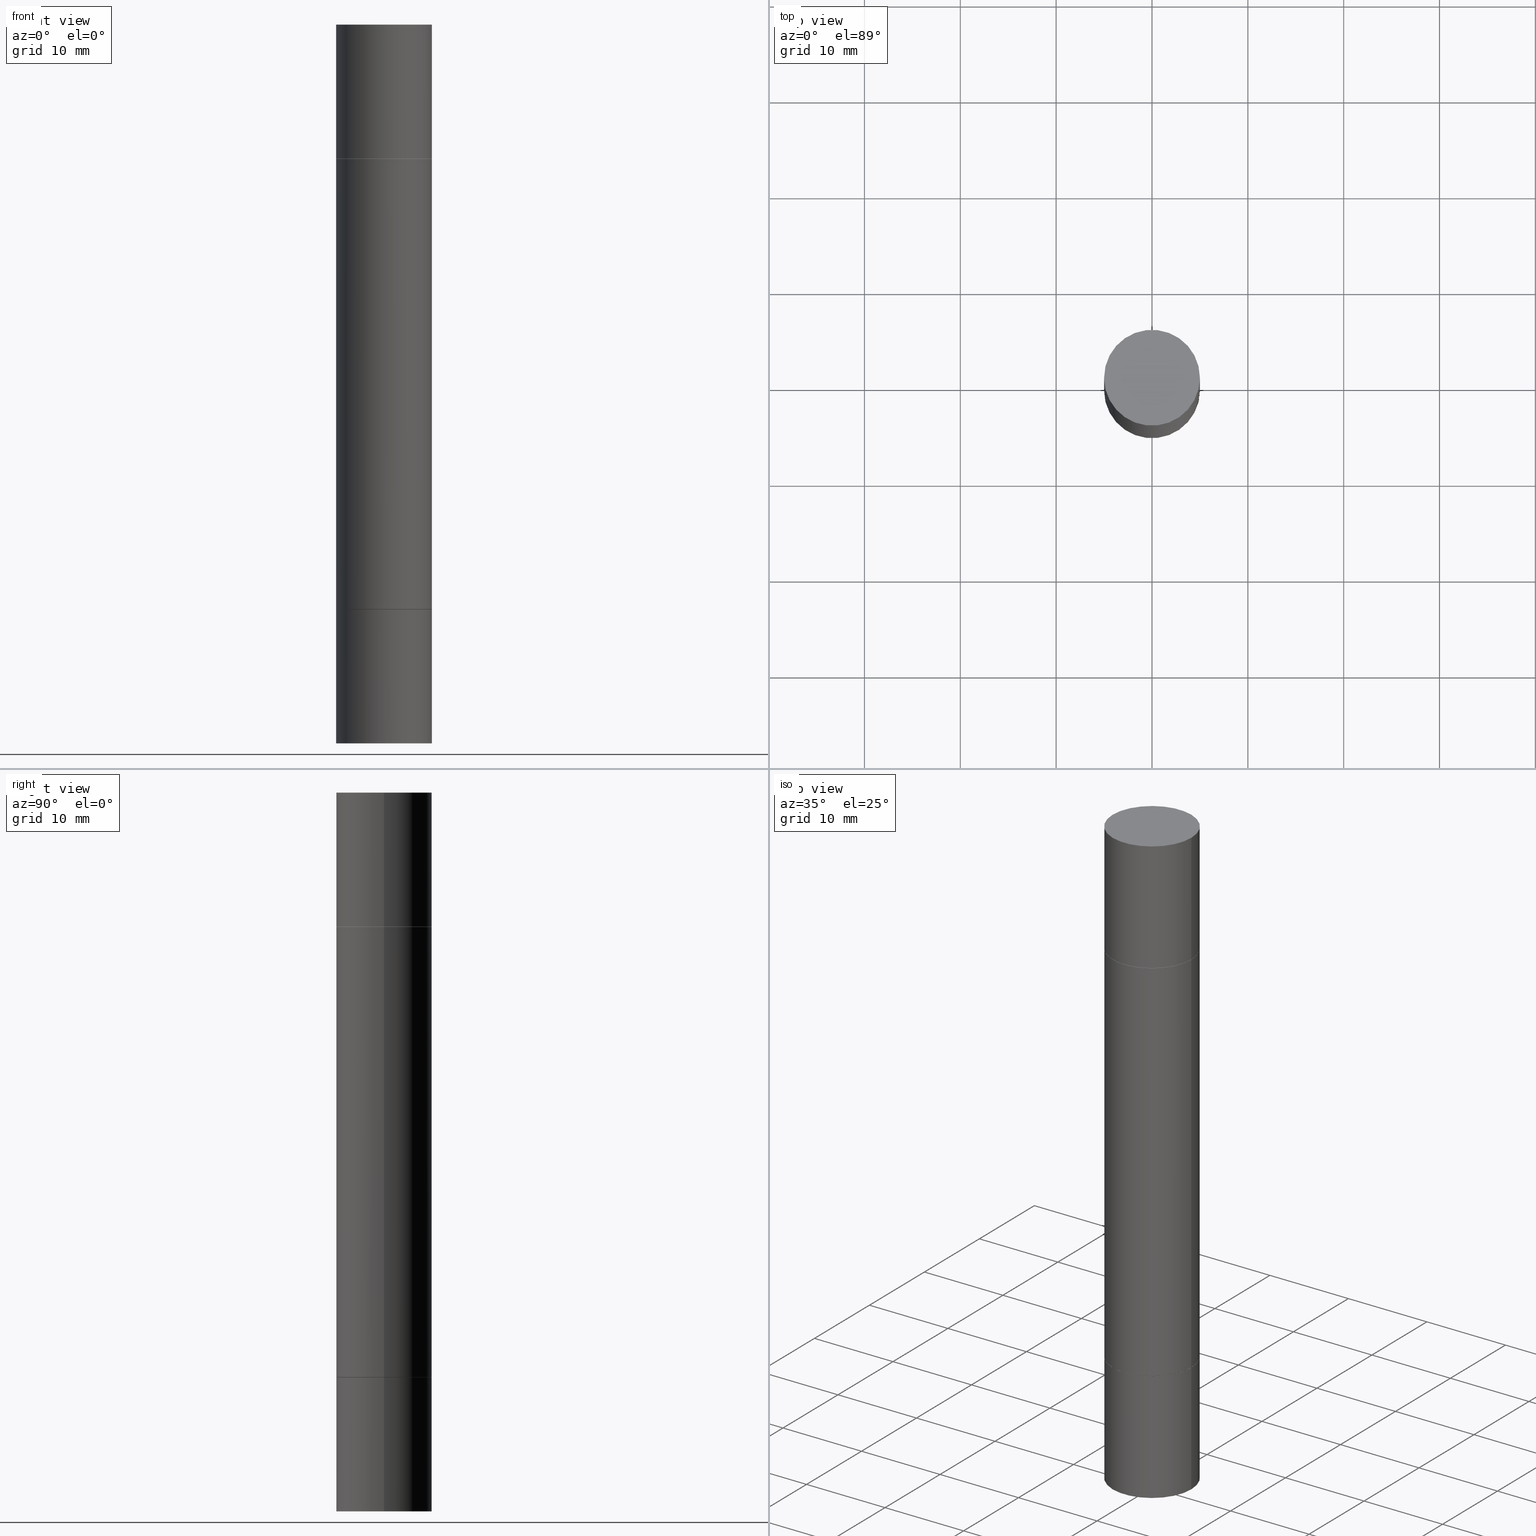
[diagram: canonical four-view strip — front | top / right | iso, engineering-drawing reading convention]
A machine part, canonical four-view strip (front | top / right | iso — engineering-drawing reading convention). The complete STEP part file that produces these views, byte-faithful:
ISO-10303-21;
HEADER;
FILE_DESCRIPTION (( 'STEP AP203' ),
    '1' );
FILE_NAME ('41457.STEP',
    '2024-03-04T15:45:16',
    ( '' ),
    ( '' ),
    'SwSTEP 2.0',
    'SolidWorks 2023',
    '' );
FILE_SCHEMA (( 'CONFIG_CONTROL_DESIGN' ));
ENDSEC;

DATA;
#1 = AXIS2_PLACEMENT_3D ( 'NONE', #388, #78, #191 ) ;
#2 = CLOSED_SHELL ( 'NONE', ( #397, #20, #266, #49 ) ) ;
#3 = FACE_OUTER_BOUND ( 'NONE', #462, .T. ) ;
#4 = EDGE_CURVE ( 'NONE', #501, #244, #326, .T. ) ;
#5 = CARTESIAN_POINT ( 'NONE',  ( -0.1968500000000000250, -8.961237421421697861E-15, -2.952799999999998981 ) ) ;
#6 = FACE_OUTER_BOUND ( 'NONE', #156, .T. ) ;
#7 = ORIENTED_EDGE ( 'NONE', *, *, #375, .T. ) ;
#8 = ORIENTED_EDGE ( 'NONE', *, *, #598, .T. ) ;
#9 = DIRECTION ( 'NONE',  ( 0.7071067811864267805, -7.407546758113824138E-15, -0.7071067811866682540 ) ) ;
#10 = DIRECTION ( 'NONE',  ( 1.000000000000000000, -6.982962677686267499E-15, 0.000000000000000000 ) ) ;
#11 = AXIS2_PLACEMENT_3D ( 'NONE', #495, #131, #340 ) ;
#12 = EDGE_CURVE ( 'NONE', #80, #133, #343, .T. ) ;
#13 = CARTESIAN_POINT ( 'NONE',  ( -0.1968500000000000250, -7.948690465007109319E-15, -2.952799999999999869 ) ) ;
#14 = DIRECTION ( 'NONE',  ( 2.445468806185136597E-29, 3.492890411551752677E-15, 1.000000000000000000 ) ) ;
#15 = EDGE_LOOP ( 'NONE', ( #395, #423 ) ) ;
#16 = CYLINDRICAL_SURFACE ( 'NONE', #302, 0.1968500000000000250 ) ;
#17 = EDGE_CURVE ( 'NONE', #582, #111, #510, .T. ) ;
#18 = EDGE_LOOP ( 'NONE', ( #534, #546 ) ) ;
#19 = DIRECTION ( 'NONE',  ( 0.000000000000000000, 1.000000000000000000, -4.163344669033678790E-15 ) ) ;
#20 = ADVANCED_FACE ( 'NONE', ( #439 ), #494, .T. ) ;
#21 = VERTEX_POINT ( 'NONE', #608 ) ;
#22 = AXIS2_PLACEMENT_3D ( 'NONE', #323, #536, #217 ) ;
#23 = AXIS2_PLACEMENT_3D ( 'NONE', #508, #449, #285 ) ;
#24 = PRODUCT_DEFINITION_SHAPE ( 'NONE', 'NONE',  #104 ) ;
#25 = DIRECTION ( 'NONE',  ( -2.445468806185136877E-29, -3.492890411551753071E-15, -1.000000000000000000 ) ) ;
#26 = CARTESIAN_POINT ( 'NONE',  ( 5.873037884934223228E-29, -1.923200839900336120E-15, -0.5511999999999995792 ) ) ;
#27 = ORIENTED_EDGE ( 'NONE', *, *, #436, .F. ) ;
#28 = DIRECTION ( 'NONE',  ( -2.445468806185136597E-29, 3.491481338843145583E-15, 1.000000000000000000 ) ) ;
#29 = DIRECTION ( 'NONE',  ( 1.000000000000000000, -6.982962677686267499E-15, 0.000000000000000000 ) ) ;
#30 = DIRECTION ( 'NONE',  ( -2.445468806185136597E-29, 3.491481338843145583E-15, 1.000000000000000000 ) ) ;
#31 = CARTESIAN_POINT ( 'NONE',  ( -0.1968500000000000250, -7.948690465007109319E-15, -2.401599999999999735 ) ) ;
#32 = DIRECTION ( 'NONE',  ( 1.000000000000000000, -6.982962677686268288E-15, 0.000000000000000000 ) ) ;
#33 = ORIENTED_EDGE ( 'NONE', *, *, #639, .F. ) ;
#34 = CONICAL_SURFACE ( 'NONE', #421, 0.1958499999999999963, 0.7853981633972775267 ) ;
#35 = CIRCLE ( 'NONE', #422, 0.1968500000000000250 ) ;
#36 = CARTESIAN_POINT ( 'NONE',  ( 5.873037884934223228E-29, -1.923200839900334937E-15, -0.5511999999999992461 ) ) ;
#37 = CARTESIAN_POINT ( 'NONE',  ( 0.1958499999999999963, -9.752754823790552857E-15, -2.401599999999999735 ) ) ;
#38 = MANIFOLD_SOLID_BREP ( 'Mirror1[4]', #301 ) ;
#39 = MANIFOLD_SOLID_BREP ( 'Body-Move/Copy2[1]', #2 ) ;
#40 = MANIFOLD_SOLID_BREP ( 'Mirror1[1]', #47 ) ;
#41 = ORIENTED_EDGE ( 'NONE', *, *, #17, .F. ) ;
#42 = APPROVAL_DATE_TIME ( #516, #586 ) ;
#43 = ORIENTED_EDGE ( 'NONE', *, *, #60, .F. ) ;
#44 = APPROVAL_ROLE ( '' ) ;
#45 = AXIS2_PLACEMENT_3D ( 'NONE', #530, #470, #420 ) ;
#46 = FACE_OUTER_BOUND ( 'NONE', #626, .T. ) ;
#47 = CLOSED_SHELL ( 'NONE', ( #371, #659, #578, #64, #211, #50 ) ) ;
#48 = ORIENTED_EDGE ( 'NONE', *, *, #497, .T. ) ;
#49 = ADVANCED_FACE ( 'NONE', ( #498 ), #653, .T. ) ;
#50 = ADVANCED_FACE ( 'NONE', ( #339 ), #553, .T. ) ;
#51 = DATE_AND_TIME ( #154, #614 ) ;
#52 = LINE ( 'NONE', #100, #377 ) ;
#53 = VERTEX_POINT ( 'NONE', #186 ) ;
#54 = ORIENTED_EDGE ( 'NONE', *, *, #593, .F. ) ;
#55 = APPLICATION_PROTOCOL_DEFINITION ( 'international standard', 'config_control_design', 1994, #441 ) ;
#56 = FACE_OUTER_BOUND ( 'NONE', #475, .T. ) ;
#57 = CC_DESIGN_PERSON_AND_ORGANIZATION_ASSIGNMENT ( #627, #202, ( #673 ) ) ;
#58 = DIRECTION ( 'NONE',  ( 1.000000000000000000, -6.982962677686262766E-15, 0.000000000000000000 ) ) ;
#59 = CONICAL_SURFACE ( 'NONE', #443, 0.1958499999999999963, 0.7853981633972775267 ) ;
#60 = EDGE_CURVE ( 'NONE', #226, #310, #210, .T. ) ;
#61 = CARTESIAN_POINT ( 'NONE',  ( -0.1968500000000000250, 3.899287883846529545E-16, 5.463695987328561936E-16 ) ) ;
#62 = LINE ( 'NONE', #68, #612 ) ;
#63 = DIRECTION ( 'NONE',  ( -2.445468806185136597E-29, 3.491481338843145583E-15, 1.000000000000000000 ) ) ;
#64 = ADVANCED_FACE ( 'NONE', ( #491 ), #679, .F. ) ;
#65 = FACE_OUTER_BOUND ( 'NONE', #356, .T. ) ;
#66 = AXIS2_PLACEMENT_3D ( 'NONE', #472, #251, #524 ) ;
#67 = DIRECTION ( 'NONE',  ( 2.445468806185136597E-29, 3.492890411551752677E-15, 1.000000000000000000 ) ) ;
#68 = CARTESIAN_POINT ( 'NONE',  ( 0.1958499999999999963, -3.290814080325190531E-15, -0.5511999999999992461 ) ) ;
#69 = CARTESIAN_POINT ( 'NONE',  ( 5.873037884934223228E-29, -8.385141583365697263E-15, -2.401599999999999735 ) ) ;
#70 = ORIENTED_EDGE ( 'NONE', *, *, #375, .F. ) ;
#71 = CARTESIAN_POINT ( 'NONE',  ( 5.870592416128037625E-29, -8.381650102026854256E-15, -2.400599999999999401 ) ) ;
#72 = DIRECTION ( 'NONE',  ( 2.445468806185136597E-29, 3.492890411551752677E-15, 1.000000000000000000 ) ) ;
#73 = DIRECTION ( 'NONE',  ( -2.445468806185136597E-29, -3.492890411551752677E-15, -1.000000000000000000 ) ) ;
#74 = ADVANCED_FACE ( 'NONE', ( #520 ), #157, .F. ) ;
#75 = CARTESIAN_POINT ( 'NONE',  ( 0.000000000000000000, -1.031172645228302408E-14, -2.952799999999998981 ) ) ;
#76 = CIRCLE ( 'NONE', #354, 0.1968500000000000250 ) ;
#77 = AXIS2_PLACEMENT_3D ( 'NONE', #428, #437, #478 ) ;
#78 = DIRECTION ( 'NONE',  ( -2.445468806185136597E-29, 3.491481338843145583E-15, 1.000000000000000000 ) ) ;
#79 = DIRECTION ( 'NONE',  ( 1.000000000000000000, -6.982962677686265922E-15, 4.876176775795935793E-29 ) ) ;
#80 = VERTEX_POINT ( 'NONE', #102 ) ;
#81 = LINE ( 'NONE', #613, #642 ) ;
#82 = DIRECTION ( 'NONE',  ( 1.000000000000000000, -6.982962677686268288E-15, 0.000000000000000000 ) ) ;
#83 = LINE ( 'NONE', #313, #542 ) ;
#84 = ORIENTED_EDGE ( 'NONE', *, *, #197, .F. ) ;
#85 = EDGE_CURVE ( 'NONE', #111, #549, #83, .T. ) ;
#86 = FACE_OUTER_BOUND ( 'NONE', #212, .T. ) ;
#87 = ORIENTED_EDGE ( 'NONE', *, *, #509, .F. ) ;
#88 = AXIS2_PLACEMENT_3D ( 'NONE', #69, #638, #384 ) ;
#89 = CALENDAR_DATE ( 2024, 4, 3 ) ;
#90 = LINE ( 'NONE', #138, #378 ) ;
#91 = EDGE_CURVE ( 'NONE', #258, #335, #52, .T. ) ;
#92 = ORIENTED_EDGE ( 'NONE', *, *, #273, .T. ) ;
#93 = ORIENTED_EDGE ( 'NONE', *, *, #583, .T. ) ;
#94 = PERSON_AND_ORGANIZATION ( #147, #521 ) ;
#95 = CARTESIAN_POINT ( 'NONE',  ( -0.1968499999999998307, -8.961237421421701017E-15, -2.952799999999998981 ) ) ;
#96 = EDGE_CURVE ( 'NONE', #582, #621, #628, .T. ) ;
#97 = ORIENTED_EDGE ( 'NONE', *, *, #139, .T. ) ;
#98 = AXIS2_PLACEMENT_3D ( 'NONE', #130, #30, #237 ) ;
#99 = LOCAL_TIME ( 10, 45, 16.00000000000000000, #419 ) ;
#100 = CARTESIAN_POINT ( 'NONE',  ( 0.1968499999999998307, -1.168632265538556411E-14, -2.952799999999998981 ) ) ;
#101 = ORIENTED_EDGE ( 'NONE', *, *, #345, .F. ) ;
#102 = CARTESIAN_POINT ( 'NONE',  ( -0.1968500000000000250, 3.899287883846532010E-16, -0.5511999999999995792 ) ) ;
#103 = DESIGN_CONTEXT ( 'detailed design', #441, 'design' ) ;
#104 = PRODUCT_DEFINITION ( 'UNKNOWN', '', #673, #103 ) ;
#105 = DIRECTION ( 'NONE',  ( 1.000000000000000000, -6.982962677686265922E-15, 9.839502134516470631E-33 ) ) ;
#106 = DIRECTION ( 'NONE',  ( -1.000000000000000000, 6.982962677686265922E-15, -4.876176775795935793E-29 ) ) ;
#107 = AXIS2_PLACEMENT_3D ( 'NONE', #660, #442, #611 ) ;
#108 = APPROVAL_PERSON_ORGANIZATION ( #192, #586, #44 ) ;
#109 = ORIENTED_EDGE ( 'NONE', *, *, #383, .F. ) ;
#110 = DIRECTION ( 'NONE',  ( -1.000000000000000000, 6.982962677686265922E-15, -9.839502134516470631E-33 ) ) ;
#111 = VERTEX_POINT ( 'NONE', #261 ) ;
#112 = PLANE ( 'NONE',  #318 ) ;
#113 = ADVANCED_BREP_SHAPE_REPRESENTATION ( '41457', ( #39, #40, #268, #38, #493, #66 ), #577 ) ;
#114 = DIRECTION ( 'NONE',  ( 1.000000000000000000, -6.982962677686265922E-15, 0.000000000000000000 ) ) ;
#115 = EDGE_CURVE ( 'NONE', #677, #430, #120, .T. ) ;
#116 = VERTEX_POINT ( 'NONE', #206 ) ;
#117 = ADVANCED_FACE ( 'NONE', ( #413 ), #209, .T. ) ;
#118 = DIRECTION ( 'NONE',  ( 0.000000000000000000, 1.000000000000000000, -4.163344669033678790E-15 ) ) ;
#119 = DIRECTION ( 'NONE',  ( 1.000000000000000000, -6.982962677686262766E-15, 0.000000000000000000 ) ) ;
#120 = CIRCLE ( 'NONE', #624, 0.1958499999999999963 ) ;
#121 = AXIS2_PLACEMENT_3D ( 'NONE', #291, #227, #336 ) ;
#122 = DIRECTION ( 'NONE',  ( -2.445468806185136877E-29, -3.492890411551753071E-15, -1.000000000000000000 ) ) ;
#123 = CLOSED_SHELL ( 'NONE', ( #332, #166, #416, #74, #216, #432, #241, #141 ) ) ;
#124 = DIRECTION ( 'NONE',  ( -2.445468806185136597E-29, -3.492890411551752677E-15, -1.000000000000000000 ) ) ;
#125 = DIRECTION ( 'NONE',  ( -2.445468806185136597E-29, -3.492890411551752677E-15, -1.000000000000000000 ) ) ;
#126 = ORIENTED_EDGE ( 'NONE', *, *, #639, .T. ) ;
#127 = DIRECTION ( 'NONE',  ( 1.000000000000000000, -6.982962677686262766E-15, 0.000000000000000000 ) ) ;
#128 = EDGE_CURVE ( 'NONE', #53, #501, #140, .T. ) ;
#129 = PRODUCT ( '41457', '41457', '', ( #359 ) ) ;
#130 = CARTESIAN_POINT ( 'NONE',  ( 0.000000000000000000, 0.000000000000000000, 0.000000000000000000 ) ) ;
#131 = DIRECTION ( 'NONE',  ( 2.445468806185136597E-29, 3.492890411551752677E-15, 1.000000000000000000 ) ) ;
#132 = CARTESIAN_POINT ( 'NONE',  ( 5.870592416128037625E-29, -8.381650102026854256E-15, -2.400599999999999401 ) ) ;
#133 = VERTEX_POINT ( 'NONE', #270 ) ;
#134 = CIRCLE ( 'NONE', #600, 0.1958499999999999963 ) ;
#135 = CIRCLE ( 'NONE', #486, 0.1968500000000000250 ) ;
#136 = LOCAL_TIME ( 10, 45, 16.00000000000000000, #314 ) ;
#137 = CARTESIAN_POINT ( 'NONE',  ( 1.374596203102613789E-15, 0.1968500000000000250, -5.463695987328526437E-16 ) ) ;
#138 = CARTESIAN_POINT ( 'NONE',  ( -0.1968500000000000250, -8.961237421421697861E-15, -2.952799999999998981 ) ) ;
#139 = EDGE_CURVE ( 'NONE', #116, #271, #257, .T. ) ;
#140 = LINE ( 'NONE', #155, #207 ) ;
#141 = ADVANCED_FACE ( 'NONE', ( #46 ), #309, .F. ) ;
#142 = ORIENTED_EDGE ( 'NONE', *, *, #562, .T. ) ;
#143 = CARTESIAN_POINT ( 'NONE',  ( 1.374596203102600181E-15, 0.1968499999999980543, -0.5512000000000001343 ) ) ;
#144 = ORIENTED_EDGE ( 'NONE', *, *, #12, .F. ) ;
#145 = SHAPE_DEFINITION_REPRESENTATION ( #24, #113 ) ;
#146 = CARTESIAN_POINT ( 'NONE',  ( 0.1958499999999999963, -3.290814080325190531E-15, -0.5511999999999992461 ) ) ;
#147 = PERSON ( 'UNSPECIFIED', 'UNSPECIFIED', 'UNSPECIFIED', ('UNSPECIFIED'), ('UNSPECIFIED'), ('UNSPECIFIED') ) ;
#148 = ORIENTED_EDGE ( 'NONE', *, *, #465, .T. ) ;
#149 = AXIS2_PLACEMENT_3D ( 'NONE', #381, #592, #110 ) ;
#150 = CIRCLE ( 'NONE', #77, 0.1968500000000000250 ) ;
#151 = APPROVAL_ROLE ( '' ) ;
#152 = LOCAL_TIME ( 10, 45, 16.00000000000000000, #200 ) ;
#153 = ORIENTED_EDGE ( 'NONE', *, *, #571, .T. ) ;
#154 = CALENDAR_DATE ( 2024, 4, 3 ) ;
#155 = CARTESIAN_POINT ( 'NONE',  ( -0.1958499999999999963, -5.795723070367805287E-16, -0.5511999999999992461 ) ) ;
#156 = EDGE_LOOP ( 'NONE', ( #385, #164, #631, #54 ) ) ;
#157 = PLANE ( 'NONE',  #512 ) ;
#158 = AXIS2_PLACEMENT_3D ( 'NONE', #541, #72, #398 ) ;
#159 = CALENDAR_DATE ( 2024, 4, 3 ) ;
#160 = DIRECTION ( 'NONE',  ( -0.7071067811864267805, 2.381258160590016583E-15, -0.7071067811866682540 ) ) ;
#161 = CC_DESIGN_PERSON_AND_ORGANIZATION_ASSIGNMENT ( #514, #519, ( #104 ) ) ;
#162 = ORIENTED_EDGE ( 'NONE', *, *, #386, .F. ) ;
#163 = DIRECTION ( 'NONE',  ( 2.445468806185136597E-29, 3.492890411551752677E-15, 1.000000000000000000 ) ) ;
#164 = ORIENTED_EDGE ( 'NONE', *, *, #517, .T. ) ;
#165 = CARTESIAN_POINT ( 'NONE',  ( 0.1968500000000000250, -1.168632265538556569E-14, -2.952799999999998981 ) ) ;
#166 = ADVANCED_FACE ( 'NONE', ( #56 ), #203, .T. ) ;
#167 = CARTESIAN_POINT ( 'NONE',  ( 5.873037884934223228E-29, -1.923200839900334937E-15, -0.5511999999999992461 ) ) ;
#168 = DIRECTION ( 'NONE',  ( 2.445468806185136597E-29, 3.492890411551752677E-15, 1.000000000000000000 ) ) ;
#169 = AXIS2_PLACEMENT_3D ( 'NONE', #558, #67, #278 ) ;
#170 = CONICAL_SURFACE ( 'NONE', #243, 0.1958499999999999963, 0.7853981633972775267 ) ;
#171 = ORIENTED_EDGE ( 'NONE', *, *, #517, .F. ) ;
#172 = DIRECTION ( 'NONE',  ( 0.000000000000000000, 3.492185875197449524E-15, 1.000000000000000000 ) ) ;
#173 = DIRECTION ( 'NONE',  ( 2.445468806185136597E-29, 3.492890411551752677E-15, 1.000000000000000000 ) ) ;
#174 = EDGE_CURVE ( 'NONE', #406, #53, #198, .T. ) ;
#175 = CARTESIAN_POINT ( 'NONE',  ( -0.1968499999999998307, -2.190269358628626559E-15, -1.476399999999999491 ) ) ;
#176 = EDGE_LOOP ( 'NONE', ( #43, #148, #518, #215 ) ) ;
#177 = CYLINDRICAL_SURFACE ( 'NONE', #22, 0.1968499999999998307 ) ;
#178 = AXIS2_PLACEMENT_3D ( 'NONE', #382, #213, #106 ) ;
#179 = VECTOR ( 'NONE', #539, 39.37007874015748143 ) ;
#180 = CC_DESIGN_PERSON_AND_ORGANIZATION_ASSIGNMENT ( #303, #264, ( #673 ) ) ;
#181 = EDGE_LOOP ( 'NONE', ( #446, #561, #480, #27 ) ) ;
#182 = DIRECTION ( 'NONE',  ( -2.445468806185136877E-29, -3.492890411551753071E-15, -1.000000000000000000 ) ) ;
#183 = ORIENTED_EDGE ( 'NONE', *, *, #615, .F. ) ;
#184 = DIRECTION ( 'NONE',  ( 1.000000000000000000, -6.982962677686262766E-15, 0.000000000000000000 ) ) ;
#185 = DIRECTION ( 'NONE',  ( -0.000000000000000000, -3.492185875197449130E-15, -1.000000000000000000 ) ) ;
#186 = CARTESIAN_POINT ( 'NONE',  ( -0.1958499999999999963, -5.778885032436711881E-16, -0.5511999999999992461 ) ) ;
#187 = DIRECTION ( 'NONE',  ( 0.7071067811864267805, -2.468850131080992517E-15, 0.7071067811866682540 ) ) ;
#188 = EDGE_CURVE ( 'NONE', #565, #629, #76, .T. ) ;
#189 = CIRCLE ( 'NONE', #218, 0.1968500000000000250 ) ;
#190 = VERTEX_POINT ( 'NONE', #348 ) ;
#191 = DIRECTION ( 'NONE',  ( 1.000000000000000000, -6.982962677686267499E-15, 0.000000000000000000 ) ) ;
#192 = PERSON_AND_ORGANIZATION ( #147, #521 ) ;
#193 = FACE_OUTER_BOUND ( 'NONE', #361, .T. ) ;
#194 = ORIENTED_EDGE ( 'NONE', *, *, #320, .F. ) ;
#195 = PERSON_AND_ORGANIZATION ( #147, #521 ) ;
#196 = ORIENTED_EDGE ( 'NONE', *, *, #4, .F. ) ;
#197 = EDGE_CURVE ( 'NONE', #572, #190, #134, .T. ) ;
#198 = CIRCLE ( 'NONE', #431, 0.1958499999999999963 ) ;
#199 = VECTOR ( 'NONE', #187, 39.37007874015748143 ) ;
#200 = COORDINATED_UNIVERSAL_TIME_OFFSET ( 5, 0, .BEHIND. ) ;
#201 = ORIENTED_EDGE ( 'NONE', *, *, #96, .T. ) ;
#202 = PERSON_AND_ORGANIZATION_ROLE ( 'design_supplier' ) ;
#203 = CYLINDRICAL_SURFACE ( 'NONE', #588, 0.1968499999999998307 ) ;
#204 = EDGE_LOOP ( 'NONE', ( #101, #231, #503, #522 ) ) ;
#205 = PERSON_AND_ORGANIZATION ( #147, #521 ) ;
#206 = CARTESIAN_POINT ( 'NONE',  ( -0.1968500000000000250, -5.762046994505618475E-16, -0.5521999999999996911 ) ) ;
#207 = VECTOR ( 'NONE', #160, 39.37007874015748143 ) ;
#208 = CIRCLE ( 'NONE', #121, 0.1968500000000000250 ) ;
#209 = CYLINDRICAL_SURFACE ( 'NONE', #45, 0.1968500000000000250 ) ;
#210 = CIRCLE ( 'NONE', #169, 0.1968500000000000250 ) ;
#211 = ADVANCED_FACE ( 'NONE', ( #3 ), #34, .T. ) ;
#212 = EDGE_LOOP ( 'NONE', ( #526, #529 ) ) ;
#213 = DIRECTION ( 'NONE',  ( 2.438088387897960049E-29, -3.491481338843145188E-15, -1.000000000000000000 ) ) ;
#214 = FACE_OUTER_BOUND ( 'NONE', #308, .T. ) ;
#215 = ORIENTED_EDGE ( 'NONE', *, *, #238, .F. ) ;
#216 = ADVANCED_FACE ( 'NONE', ( #560 ), #327, .T. ) ;
#217 = DIRECTION ( 'NONE',  ( 1.000000000000000000, -6.982962677686264344E-15, 0.000000000000000000 ) ) ;
#218 = AXIS2_PLACEMENT_3D ( 'NONE', #645, #173, #435 ) ;
#219 = CONICAL_SURFACE ( 'NONE', #476, 0.1958499999999999963, 0.7853981633972775267 ) ;
#220 = ORIENTED_EDGE ( 'NONE', *, *, #461, .T. ) ;
#221 = CARTESIAN_POINT ( 'NONE',  ( 0.1968500000000000250, -3.297797043002877729E-15, -0.5511999999999995792 ) ) ;
#222 = DIRECTION ( 'NONE',  ( 1.000000000000000000, -6.982962677686267499E-15, 0.000000000000000000 ) ) ;
#223 = CARTESIAN_POINT ( 'NONE',  ( 7.220980290903470182E-29, -1.030964609733603853E-14, -2.952799999999999869 ) ) ;
#224 = LINE ( 'NONE', #5, #179 ) ;
#225 = CARTESIAN_POINT ( 'NONE',  ( -0.1968500000000000250, -3.804334017806689102E-15, -2.400599999999999401 ) ) ;
#226 = VERTEX_POINT ( 'NONE', #61 ) ;
#227 = DIRECTION ( 'NONE',  ( -2.445468806185136597E-29, 3.491481338843145583E-15, 1.000000000000000000 ) ) ;
#228 = LINE ( 'NONE', #444, #456 ) ;
#229 = VECTOR ( 'NONE', #477, 39.37007874015748143 ) ;
#230 = CIRCLE ( 'NONE', #467, 0.1968499999999998307 ) ;
#231 = ORIENTED_EDGE ( 'NONE', *, *, #115, .T. ) ;
#232 = DIRECTION ( 'NONE',  ( -1.000000000000000000, 6.982962677686265922E-15, -9.839502134516470631E-33 ) ) ;
#233 = DIRECTION ( 'NONE',  ( 2.445468806185136597E-29, 3.492890411551752677E-15, 1.000000000000000000 ) ) ;
#234 = DIRECTION ( 'NONE',  ( -2.445468806185136597E-29, 3.491481338843145583E-15, 1.000000000000000000 ) ) ;
#235 =( LENGTH_UNIT ( ) NAMED_UNIT ( * ) SI_UNIT ( $, .METRE. ) );
#236 = FACE_OUTER_BOUND ( 'NONE', #650, .T. ) ;
#237 = DIRECTION ( 'NONE',  ( 1.000000000000000000, -6.982962677686265922E-15, 4.876176775795935793E-29 ) ) ;
#238 = EDGE_CURVE ( 'NONE', #310, #565, #492, .T. ) ;
#239 =( CONVERSION_BASED_UNIT ( 'INCH', #451 ) LENGTH_UNIT ( ) NAMED_UNIT ( #550 ) );
#240 = DIRECTION ( 'NONE',  ( 1.000000000000000000, -6.982962677686268288E-15, 0.000000000000000000 ) ) ;
#241 = ADVANCED_FACE ( 'NONE', ( #496 ), #387, .T. ) ;
#242 = DIRECTION ( 'NONE',  ( -2.438088387897959769E-29, -3.492890411551753071E-15, -1.000000000000000000 ) ) ;
#243 = AXIS2_PLACEMENT_3D ( 'NONE', #658, #246, #82 ) ;
#244 = VERTEX_POINT ( 'NONE', #225 ) ;
#245 = CARTESIAN_POINT ( 'NONE',  ( 0.1968500000000000250, -1.372515848155552113E-15, 5.463695987328526437E-16 ) ) ;
#246 = DIRECTION ( 'NONE',  ( -2.445468806185136597E-29, -3.492890411551752677E-15, -1.000000000000000000 ) ) ;
#247 = ORIENTED_EDGE ( 'NONE', *, *, #260, .T. ) ;
#248 = DATE_AND_TIME ( #619, #99 ) ;
#249 = EDGE_CURVE ( 'NONE', #310, #226, #189, .T. ) ;
#250 = VERTEX_POINT ( 'NONE', #647 ) ;
#251 = DIRECTION ( 'NONE',  ( 0.000000000000000000, 0.000000000000000000, 1.000000000000000000 ) ) ;
#252 = ORIENTED_EDGE ( 'NONE', *, *, #4, .T. ) ;
#253 = CLOSED_SHELL ( 'NONE', ( #117, #623, #678, #651 ) ) ;
#254 = VECTOR ( 'NONE', #25, 39.37007874015748143 ) ;
#255 = APPROVAL_STATUS ( 'not_yet_approved' ) ;
#256 = CC_DESIGN_APPROVAL ( #425, ( #673 ) ) ;
#257 = LINE ( 'NONE', #95, #499 ) ;
#258 = VERTEX_POINT ( 'NONE', #283 ) ;
#259 = COORDINATED_UNIVERSAL_TIME_OFFSET ( 5, 0, .BEHIND. ) ;
#260 = EDGE_CURVE ( 'NONE', #244, #335, #474, .T. ) ;
#261 = CARTESIAN_POINT ( 'NONE',  ( 0.1968500000000000250, -1.168424230043858014E-14, -2.952799999999999869 ) ) ;
#262 = ORIENTED_EDGE ( 'NONE', *, *, #488, .F. ) ;
#263 = ORIENTED_EDGE ( 'NONE', *, *, #509, .T. ) ;
#264 = PERSON_AND_ORGANIZATION_ROLE ( 'creator' ) ;
#265 = DIRECTION ( 'NONE',  ( 1.000000000000000000, -6.982962677686265922E-15, 9.839502134516470631E-33 ) ) ;
#266 = ADVANCED_FACE ( 'NONE', ( #376 ), #429, .F. ) ;
#267 = AXIS2_PLACEMENT_3D ( 'NONE', #293, #438, #640 ) ;
#268 = MANIFOLD_SOLID_BREP ( 'Mirror1[3]', #253 ) ;
#269 = AXIS2_PLACEMENT_3D ( 'NONE', #654, #617, #295 ) ;
#270 = CARTESIAN_POINT ( 'NONE',  ( 0.1968500000000000250, -3.297797043002877729E-15, -0.5511999999999995792 ) ) ;
#271 = VERTEX_POINT ( 'NONE', #175 ) ;
#272 = CARTESIAN_POINT ( 'NONE',  ( 7.220980290903470182E-29, 2.080354946989631982E-18, 5.463695987328526437E-16 ) ) ;
#273 = EDGE_CURVE ( 'NONE', #483, #667, #286, .T. ) ;
#274 = DIRECTION ( 'NONE',  ( -2.445468806185136597E-29, -3.492890411551752677E-15, -1.000000000000000000 ) ) ;
#275 = FACE_OUTER_BOUND ( 'NONE', #527, .T. ) ;
#276 = CARTESIAN_POINT ( 'NONE',  ( 5.870592416128037625E-29, -1.926693730311889446E-15, -0.5521999999999996911 ) ) ;
#277 = CIRCLE ( 'NONE', #269, 0.1958499999999999963 ) ;
#278 = DIRECTION ( 'NONE',  ( 1.000000000000000000, -6.982962677686265922E-15, 0.000000000000000000 ) ) ;
#279 = CC_DESIGN_PERSON_AND_ORGANIZATION_ASSIGNMENT ( #195, #408, ( #129 ) ) ;
#280 = DIRECTION ( 'NONE',  ( 1.000000000000000000, -6.982962677686267499E-15, 0.000000000000000000 ) ) ;
#281 = CARTESIAN_POINT ( 'NONE',  ( -0.1958499999999999963, -6.993543635379541272E-15, -2.401599999999999735 ) ) ;
#282 = ORIENTED_EDGE ( 'NONE', *, *, #488, .T. ) ;
#283 = CARTESIAN_POINT ( 'NONE',  ( 0.1968500000000000250, -3.301289933414429871E-15, -0.5521999999999996911 ) ) ;
#284 = DIRECTION ( 'NONE',  ( 1.000000000000000000, -6.982962677686267499E-15, 0.000000000000000000 ) ) ;
#285 = DIRECTION ( 'NONE',  ( 1.000000000000000000, -6.982962677686264344E-15, 0.000000000000000000 ) ) ;
#286 = CIRCLE ( 'NONE', #671, 0.1968500000000000250 ) ;
#287 = CIRCLE ( 'NONE', #344, 0.1968500000000000250 ) ;
#288 = ORIENTED_EDGE ( 'NONE', *, *, #485, .F. ) ;
#289 = CYLINDRICAL_SURFACE ( 'NONE', #23, 0.1968499999999998307 ) ;
#290 = ORIENTED_EDGE ( 'NONE', *, *, #615, .T. ) ;
#291 = CARTESIAN_POINT ( 'NONE',  ( 5.873037884934223228E-29, -8.385141583365697263E-15, -2.401599999999999735 ) ) ;
#292 = CARTESIAN_POINT ( 'NONE',  ( 5.873037884934223228E-29, -1.923200839900334937E-15, -0.5511999999999992461 ) ) ;
#293 = CARTESIAN_POINT ( 'NONE',  ( 5.873037884934223228E-29, -1.923200839900334937E-15, -0.5511999999999992461 ) ) ;
#294 = ORIENTED_EDGE ( 'NONE', *, *, #249, .F. ) ;
#295 = DIRECTION ( 'NONE',  ( 1.000000000000000000, -6.982962677686262766E-15, 0.000000000000000000 ) ) ;
#296 = CARTESIAN_POINT ( 'NONE',  ( 0.000000000000000000, 0.000000000000000000, 0.000000000000000000 ) ) ;
#297 = VECTOR ( 'NONE', #597, 39.37007874015748143 ) ;
#298 = CIRCLE ( 'NONE', #672, 0.1958499999999999963 ) ;
#299 = APPLICATION_CONTEXT ( 'configuration controlled 3d designs of mechanical parts and assemblies' ) ;
#300 = ORIENTED_EDGE ( 'NONE', *, *, #593, .T. ) ;
#301 = CLOSED_SHELL ( 'NONE', ( #305, #363, #447, #342 ) ) ;
#302 = AXIS2_PLACEMENT_3D ( 'NONE', #334, #274, #325 ) ;
#303 = PERSON_AND_ORGANIZATION ( #147, #521 ) ;
#304 = DIRECTION ( 'NONE',  ( 2.445468806185136597E-29, 3.492890411551752677E-15, 1.000000000000000000 ) ) ;
#305 = ADVANCED_FACE ( 'NONE', ( #6 ), #482, .T. ) ;
#306 = ORIENTED_EDGE ( 'NONE', *, *, #461, .F. ) ;
#307 = PERSON_AND_ORGANIZATION_ROLE ( 'classification_officer' ) ;
#308 = EDGE_LOOP ( 'NONE', ( #171, #87, #300, #468 ) ) ;
#309 = PLANE ( 'NONE',  #409 ) ;
#310 = VERTEX_POINT ( 'NONE', #595 ) ;
#311 = CC_DESIGN_APPROVAL ( #547, ( #104 ) ) ;
#312 = CIRCLE ( 'NONE', #625, 0.1968500000000000250 ) ;
#313 = CARTESIAN_POINT ( 'NONE',  ( 0.1968500000000000250, -1.374596203102541608E-15, 9.598753983154300858E-30 ) ) ;
#314 = COORDINATED_UNIVERSAL_TIME_OFFSET ( 5, 0, .BEHIND. ) ;
#315 = DIRECTION ( 'NONE',  ( -2.445468806185136877E-29, 3.491481338843145188E-15, 1.000000000000000000 ) ) ;
#316 = DIRECTION ( 'NONE',  ( -2.445468806185136597E-29, 3.491481338843145583E-15, 1.000000000000000000 ) ) ;
#317 = AXIS2_PLACEMENT_3D ( 'NONE', #440, #125, #10 ) ;
#318 = AXIS2_PLACEMENT_3D ( 'NONE', #328, #172, #489 ) ;
#319 = FACE_OUTER_BOUND ( 'NONE', #464, .T. ) ;
#320 = EDGE_CURVE ( 'NONE', #572, #116, #329, .T. ) ;
#321 = EDGE_LOOP ( 'NONE', ( #33, #41 ) ) ;
#322 = CARTESIAN_POINT ( 'NONE',  ( 0.1968500000000000250, -9.759737786468237294E-15, -2.401599999999999735 ) ) ;
#323 = CARTESIAN_POINT ( 'NONE',  ( 0.000000000000000000, -1.031172645228302408E-14, -2.952799999999998981 ) ) ;
#324 = ORIENTED_EDGE ( 'NONE', *, *, #622, .F. ) ;
#325 = DIRECTION ( 'NONE',  ( 1.000000000000000000, -6.982962677686267499E-15, 0.000000000000000000 ) ) ;
#326 = LINE ( 'NONE', #346, #641 ) ;
#327 = CONICAL_SURFACE ( 'NONE', #267, 0.1958499999999999963, 0.7853981633972775267 ) ;
#328 = CARTESIAN_POINT ( 'NONE',  ( 0.000000000000000000, 0.000000000000000000, -1.476399999999999491 ) ) ;
#329 = LINE ( 'NONE', #389, #603 ) ;
#330 = CIRCLE ( 'NONE', #355, 0.1968499999999998307 ) ;
#331 = EDGE_LOOP ( 'NONE', ( #392, #70, #282, #306 ) ) ;
#332 = ADVANCED_FACE ( 'NONE', ( #490 ), #59, .T. ) ;
#333 = DIRECTION ( 'NONE',  ( -1.000000000000000000, 6.982962677686265922E-15, -9.839502134516470631E-33 ) ) ;
#334 = CARTESIAN_POINT ( 'NONE',  ( 0.000000000000000000, -1.031172645228302408E-14, -2.952799999999998981 ) ) ;
#335 = VERTEX_POINT ( 'NONE', #540 ) ;
#336 = DIRECTION ( 'NONE',  ( 1.000000000000000000, -6.982962677686262766E-15, 0.000000000000000000 ) ) ;
#337 = CARTESIAN_POINT ( 'NONE',  ( -0.1968500000000000250, -5.762046994505618475E-16, -0.5521999999999996911 ) ) ;
#338 = PRODUCT_RELATED_PRODUCT_CATEGORY ( 'detail', '', ( #129 ) ) ;
#339 = FACE_OUTER_BOUND ( 'NONE', #331, .T. ) ;
#340 = DIRECTION ( 'NONE',  ( 1.000000000000000000, -6.982962677686267499E-15, 0.000000000000000000 ) ) ;
#341 = PLANE ( 'NONE',  #366 ) ;
#342 = ADVANCED_FACE ( 'NONE', ( #214 ), #16, .T. ) ;
#343 = CIRCLE ( 'NONE', #158, 0.1968500000000000250 ) ;
#344 = AXIS2_PLACEMENT_3D ( 'NONE', #555, #28, #184 ) ;
#345 = EDGE_CURVE ( 'NONE', #677, #244, #545, .T. ) ;
#346 = CARTESIAN_POINT ( 'NONE',  ( -0.1968499999999998307, -8.961237421421701017E-15, -2.952799999999998981 ) ) ;
#347 = FACE_OUTER_BOUND ( 'NONE', #373, .T. ) ;
#348 = CARTESIAN_POINT ( 'NONE',  ( 0.1958499999999999963, -3.290814080325190531E-15, -0.5511999999999992461 ) ) ;
#349 = ORIENTED_EDGE ( 'NONE', *, *, #238, .T. ) ;
#350 = DIRECTION ( 'NONE',  ( 2.438088387897959769E-29, 3.492890411551753071E-15, 1.000000000000000000 ) ) ;
#351 = ORIENTED_EDGE ( 'NONE', *, *, #91, .F. ) ;
#352 = CC_DESIGN_DATE_AND_TIME_ASSIGNMENT ( #670, #566, ( #104 ) ) ;
#353 = DIRECTION ( 'NONE',  ( -1.000000000000000000, 6.982962677686265922E-15, -9.839502134516470631E-33 ) ) ;
#354 = AXIS2_PLACEMENT_3D ( 'NONE', #362, #505, #424 ) ;
#355 = AXIS2_PLACEMENT_3D ( 'NONE', #655, #185, #19 ) ;
#356 = EDGE_LOOP ( 'NONE', ( #589, #97, #585, #262 ) ) ;
#357 = APPROVAL_DATE_TIME ( #51, #547 ) ;
#358 = ORIENTED_EDGE ( 'NONE', *, *, #85, .F. ) ;
#359 = MECHANICAL_CONTEXT ( 'NONE', #299, 'mechanical' ) ;
#360 = DIRECTION ( 'NONE',  ( -2.445468806185136877E-29, -3.492890411551753071E-15, -1.000000000000000000 ) ) ;
#361 = EDGE_LOOP ( 'NONE', ( #196, #324, #506, #48 ) ) ;
#362 = CARTESIAN_POINT ( 'NONE',  ( 5.873037884934223228E-29, -1.923200839900336120E-15, -0.5511999999999995792 ) ) ;
#363 = ADVANCED_FACE ( 'NONE', ( #319 ), #533, .T. ) ;
#364 = AXIS2_PLACEMENT_3D ( 'NONE', #75, #450, #452 ) ;
#365 = ORIENTED_EDGE ( 'NONE', *, *, #85, .T. ) ;
#366 = AXIS2_PLACEMENT_3D ( 'NONE', #567, #400, #353 ) ;
#367 = APPLICATION_PROTOCOL_DEFINITION ( 'international standard', 'config_control_design', 1994, #299 ) ;
#368 = DIRECTION ( 'NONE',  ( 1.000000000000000000, -6.982962677686264344E-15, 0.000000000000000000 ) ) ;
#369 = UNCERTAINTY_MEASURE_WITH_UNIT (LENGTH_MEASURE( 1.000000000000000082E-05 ), #239, 'distance_accuracy_value', 'NONE');
#370 = ORIENTED_EDGE ( 'NONE', *, *, #634, .T. ) ;
#371 = ADVANCED_FACE ( 'NONE', ( #65 ), #177, .T. ) ;
#372 = DIRECTION ( 'NONE',  ( 1.000000000000000000, -6.982962677686268288E-15, 0.000000000000000000 ) ) ;
#373 = EDGE_LOOP ( 'NONE', ( #126, #201, #183, #358 ) ) ;
#374 = CC_DESIGN_PERSON_AND_ORGANIZATION_ASSIGNMENT ( #415, #307, ( #543 ) ) ;
#375 = EDGE_CURVE ( 'NONE', #21, #116, #531, .T. ) ;
#376 = FACE_OUTER_BOUND ( 'NONE', #594, .T. ) ;
#377 = VECTOR ( 'NONE', #457, 39.37007874015748143 ) ;
#378 = VECTOR ( 'NONE', #396, 39.37007874015748143 ) ;
#379 = CC_DESIGN_APPROVAL ( #586, ( #543 ) ) ;
#380 = DIRECTION ( 'NONE',  ( 2.445468806185136597E-29, 3.492890411551752677E-15, 1.000000000000000000 ) ) ;
#381 = CARTESIAN_POINT ( 'NONE',  ( 1.374596203102613789E-15, 0.1968500000000000250, -5.463695987328526437E-16 ) ) ;
#382 = CARTESIAN_POINT ( 'NONE',  ( 1.374596203102600181E-15, 0.1968499999999916150, -2.401600000000000623 ) ) ;
#383 = EDGE_CURVE ( 'NONE', #133, #80, #135, .T. ) ;
#384 = DIRECTION ( 'NONE',  ( 1.000000000000000000, -6.982962677686262766E-15, 0.000000000000000000 ) ) ;
#385 = ORIENTED_EDGE ( 'NONE', *, *, #273, .F. ) ;
#386 = EDGE_CURVE ( 'NONE', #629, #565, #662, .T. ) ;
#387 = CONICAL_SURFACE ( 'NONE', #88, 0.1958499999999999963, 0.7853981633972775267 ) ;
#388 = CARTESIAN_POINT ( 'NONE',  ( 7.220980290903470182E-29, -1.030964609733603853E-14, -2.952799999999999869 ) ) ;
#389 = CARTESIAN_POINT ( 'NONE',  ( -0.1958499999999999963, -5.795723070367805287E-16, -0.5511999999999992461 ) ) ;
#390 = AXIS2_PLACEMENT_3D ( 'NONE', #143, #350, #333 ) ;
#391 = AXIS2_PLACEMENT_3D ( 'NONE', #276, #14, #222 ) ;
#392 = ORIENTED_EDGE ( 'NONE', *, *, #139, .F. ) ;
#393 = CC_DESIGN_DATE_AND_TIME_ASSIGNMENT ( #248, #463, ( #543 ) ) ;
#394 = DIRECTION ( 'NONE',  ( 2.445468806185136597E-29, 3.492890411551752677E-15, 1.000000000000000000 ) ) ;
#395 = ORIENTED_EDGE ( 'NONE', *, *, #174, .T. ) ;
#396 = DIRECTION ( 'NONE',  ( -2.445468806185136877E-29, -3.492890411551753071E-15, -1.000000000000000000 ) ) ;
#397 = ADVANCED_FACE ( 'NONE', ( #347 ), #403, .T. ) ;
#398 = DIRECTION ( 'NONE',  ( 1.000000000000000000, -6.982962677686267499E-15, 0.000000000000000000 ) ) ;
#399 =( NAMED_UNIT ( * ) PLANE_ANGLE_UNIT ( ) SI_UNIT ( $, .RADIAN. ) );
#400 = DIRECTION ( 'NONE',  ( 2.438088387897959769E-29, 3.492890411551753071E-15, 1.000000000000000000 ) ) ;
#401 = CARTESIAN_POINT ( 'NONE',  ( 5.873037884934223228E-29, -1.923200839900334937E-15, -0.5511999999999992461 ) ) ;
#402 = DIRECTION ( 'NONE',  ( 0.7071067811864267805, -7.407546758113824138E-15, -0.7071067811866682540 ) ) ;
#403 = CYLINDRICAL_SURFACE ( 'NONE', #557, 0.1968500000000000250 ) ;
#404 = ORIENTED_EDGE ( 'NONE', *, *, #128, .T. ) ;
#405 = APPROVAL_STATUS ( 'not_yet_approved' ) ;
#406 = VERTEX_POINT ( 'NONE', #146 ) ;
#407 = EDGE_CURVE ( 'NONE', #116, #21, #312, .T. ) ;
#408 = PERSON_AND_ORGANIZATION_ROLE ( 'design_owner' ) ;
#409 = AXIS2_PLACEMENT_3D ( 'NONE', #528, #632, #676 ) ;
#410 = APPROVAL_PERSON_ORGANIZATION ( #94, #547, #151 ) ;
#411 = ORIENTED_EDGE ( 'NONE', *, *, #17, .T. ) ;
#412 = DATE_AND_TIME ( #89, #152 ) ;
#413 = FACE_OUTER_BOUND ( 'NONE', #176, .T. ) ;
#414 = ORIENTED_EDGE ( 'NONE', *, *, #96, .F. ) ;
#415 = PERSON_AND_ORGANIZATION ( #147, #521 ) ;
#416 = ADVANCED_FACE ( 'NONE', ( #236 ), #170, .T. ) ;
#417 = CARTESIAN_POINT ( 'NONE',  ( 5.873037884934223228E-29, -1.923200839900334937E-15, -0.5511999999999992461 ) ) ;
#418 = EDGE_LOOP ( 'NONE', ( #109, #144 ) ) ;
#419 = COORDINATED_UNIVERSAL_TIME_OFFSET ( 5, 0, .BEHIND. ) ;
#420 = DIRECTION ( 'NONE',  ( 1.000000000000000000, -6.982962677686267499E-15, 0.000000000000000000 ) ) ;
#421 = AXIS2_PLACEMENT_3D ( 'NONE', #401, #616, #32 ) ;
#422 = AXIS2_PLACEMENT_3D ( 'NONE', #646, #544, #280 ) ;
#423 = ORIENTED_EDGE ( 'NONE', *, *, #485, .T. ) ;
#424 = DIRECTION ( 'NONE',  ( 1.000000000000000000, -6.982962677686267499E-15, 0.000000000000000000 ) ) ;
#425 = APPROVAL ( #570, 'UNSPECIFIED' ) ;
#426 = DIRECTION ( 'NONE',  ( -0.7071067811864267805, 2.381258160590016583E-15, -0.7071067811866682540 ) ) ;
#427 = ORIENTED_EDGE ( 'NONE', *, *, #128, .F. ) ;
#428 = CARTESIAN_POINT ( 'NONE',  ( 7.220980290903470182E-29, 2.080354946989631982E-18, 5.463695987328526437E-16 ) ) ;
#429 = PLANE ( 'NONE',  #178 ) ;
#430 = VERTEX_POINT ( 'NONE', #556 ) ;
#431 = AXIS2_PLACEMENT_3D ( 'NONE', #417, #630, #581 ) ;
#432 = ADVANCED_FACE ( 'NONE', ( #193 ), #289, .T. ) ;
#433 = CIRCLE ( 'NONE', #1, 0.1968500000000000250 ) ;
#434 = CARTESIAN_POINT ( 'NONE',  ( -0.1958499999999999963, -5.778885032436711881E-16, -0.5511999999999992461 ) ) ;
#435 = DIRECTION ( 'NONE',  ( 1.000000000000000000, -6.982962677686265922E-15, 0.000000000000000000 ) ) ;
#436 = EDGE_CURVE ( 'NONE', #430, #335, #652, .T. ) ;
#437 = DIRECTION ( 'NONE',  ( 2.445468806185136597E-29, 3.492890411551752677E-15, 1.000000000000000000 ) ) ;
#438 = DIRECTION ( 'NONE',  ( -2.445468806185136597E-29, -3.492890411551752677E-15, -1.000000000000000000 ) ) ;
#439 = FACE_OUTER_BOUND ( 'NONE', #321, .T. ) ;
#440 = CARTESIAN_POINT ( 'NONE',  ( 0.000000000000000000, -1.031172645228302408E-14, -2.952799999999998981 ) ) ;
#441 = APPLICATION_CONTEXT ( 'configuration controlled 3d designs of mechanical parts and assemblies' ) ;
#442 = DIRECTION ( 'NONE',  ( 2.438088387897960049E-29, -3.491481338843145188E-15, -1.000000000000000000 ) ) ;
#443 = AXIS2_PLACEMENT_3D ( 'NONE', #479, #587, #604 ) ;
#444 = CARTESIAN_POINT ( 'NONE',  ( 0.1968499999999998307, -1.168632265538556411E-14, -2.952799999999998981 ) ) ;
#445 = CIRCLE ( 'NONE', #633, 0.1968500000000000250 ) ;
#446 = ORIENTED_EDGE ( 'NONE', *, *, #637, .T. ) ;
#447 = ADVANCED_FACE ( 'NONE', ( #460 ), #341, .F. ) ;
#448 =( NAMED_UNIT ( * ) SI_UNIT ( $, .STERADIAN. ) SOLID_ANGLE_UNIT ( ) );
#449 = DIRECTION ( 'NONE',  ( -2.445468806185136597E-29, -3.492890411551752677E-15, -1.000000000000000000 ) ) ;
#450 = DIRECTION ( 'NONE',  ( -2.445468806185136597E-29, -3.492890411551752677E-15, -1.000000000000000000 ) ) ;
#451 = LENGTH_MEASURE_WITH_UNIT ( LENGTH_MEASURE( 0.02539999999999999897 ), #235 );
#452 = DIRECTION ( 'NONE',  ( 1.000000000000000000, -6.982962677686264344E-15, 0.000000000000000000 ) ) ;
#453 = LINE ( 'NONE', #606, #254 ) ;
#454 = DIRECTION ( 'NONE',  ( 1.000000000000000000, -6.982962677686267499E-15, 0.000000000000000000 ) ) ;
#455 = AXIS2_PLACEMENT_3D ( 'NONE', #573, #525, #105 ) ;
#456 = VECTOR ( 'NONE', #182, 39.37007874015748143 ) ;
#457 = DIRECTION ( 'NONE',  ( -2.445468806185136877E-29, -3.492890411551753071E-15, -1.000000000000000000 ) ) ;
#458 = EDGE_LOOP ( 'NONE', ( #84, #596, #515, #635 ) ) ;
#459 = CARTESIAN_POINT ( 'NONE',  ( -0.1958499999999999963, -6.988245181031318870E-15, -2.401599999999999735 ) ) ;
#460 = FACE_OUTER_BOUND ( 'NONE', #418, .T. ) ;
#461 = EDGE_CURVE ( 'NONE', #271, #250, #330, .T. ) ;
#462 = EDGE_LOOP ( 'NONE', ( #194, #484, #8, #7 ) ) ;
#463 = DATE_TIME_ROLE ( 'classification_date' ) ;
#464 = EDGE_LOOP ( 'NONE', ( #263, #92 ) ) ;
#465 = EDGE_CURVE ( 'NONE', #226, #629, #90, .T. ) ;
#466 = CALENDAR_DATE ( 2024, 4, 3 ) ;
#467 = AXIS2_PLACEMENT_3D ( 'NONE', #535, #481, #118 ) ;
#468 = ORIENTED_EDGE ( 'NONE', *, *, #383, .T. ) ;
#469 = APPROVAL_ROLE ( '' ) ;
#470 = DIRECTION ( 'NONE',  ( -2.445468806185136597E-29, -3.492890411551752677E-15, -1.000000000000000000 ) ) ;
#471 = ORIENTED_EDGE ( 'NONE', *, *, #188, .F. ) ;
#472 = CARTESIAN_POINT ( 'NONE',  ( 0.000000000000000000, 0.000000000000000000, 0.000000000000000000 ) ) ;
#473 = DIRECTION ( 'NONE',  ( -2.445468806185136597E-29, -3.492890411551752677E-15, -1.000000000000000000 ) ) ;
#474 = CIRCLE ( 'NONE', #576, 0.1968500000000000250 ) ;
#475 = EDGE_LOOP ( 'NONE', ( #599, #252, #247, #351 ) ) ;
#476 = AXIS2_PLACEMENT_3D ( 'NONE', #36, #73, #657 ) ;
#477 = DIRECTION ( 'NONE',  ( -2.445468806185136877E-29, 3.491481338843145188E-15, 1.000000000000000000 ) ) ;
#478 = DIRECTION ( 'NONE',  ( 1.000000000000000000, -6.982962677686265922E-15, 0.000000000000000000 ) ) ;
#479 = CARTESIAN_POINT ( 'NONE',  ( 5.873037884934223228E-29, -8.385141583365697263E-15, -2.401599999999999735 ) ) ;
#480 = ORIENTED_EDGE ( 'NONE', *, *, #497, .F. ) ;
#481 = DIRECTION ( 'NONE',  ( -0.000000000000000000, -3.492185875197449130E-15, -1.000000000000000000 ) ) ;
#482 = CYLINDRICAL_SURFACE ( 'NONE', #317, 0.1968500000000000250 ) ;
#483 = VERTEX_POINT ( 'NONE', #610 ) ;
#484 = ORIENTED_EDGE ( 'NONE', *, *, #538, .F. ) ;
#485 = EDGE_CURVE ( 'NONE', #53, #406, #298, .T. ) ;
#486 = AXIS2_PLACEMENT_3D ( 'NONE', #548, #664, #552 ) ;
#487 = CC_DESIGN_SECURITY_CLASSIFICATION ( #543, ( #673 ) ) ;
#488 = EDGE_CURVE ( 'NONE', #21, #250, #228, .T. ) ;
#489 = DIRECTION ( 'NONE',  ( 0.000000000000000000, 1.000000000000000000, -3.492185875197449524E-15 ) ) ;
#490 = FACE_OUTER_BOUND ( 'NONE', #181, .T. ) ;
#491 = FACE_OUTER_BOUND ( 'NONE', #18, .T. ) ;
#492 = LINE ( 'NONE', #165, #297 ) ;
#493 = MANIFOLD_SOLID_BREP ( 'Combine1', #123 ) ;
#494 = PLANE ( 'NONE',  #107 ) ;
#495 = CARTESIAN_POINT ( 'NONE',  ( 5.870592416128037625E-29, -1.926693730311889446E-15, -0.5521999999999996911 ) ) ;
#496 = FACE_OUTER_BOUND ( 'NONE', #204, .T. ) ;
#497 = EDGE_CURVE ( 'NONE', #335, #244, #445, .T. ) ;
#498 = FACE_OUTER_BOUND ( 'NONE', #579, .T. ) ;
#499 = VECTOR ( 'NONE', #360, 39.37007874015748143 ) ;
#500 = AXIS2_PLACEMENT_3D ( 'NONE', #26, #233, #29 ) ;
#501 = VERTEX_POINT ( 'NONE', #337 ) ;
#502 = CARTESIAN_POINT ( 'NONE',  ( -0.1968500000000000250, 3.899287883846532010E-16, -0.5511999999999995792 ) ) ;
#503 = ORIENTED_EDGE ( 'NONE', *, *, #436, .T. ) ;
#504 = DIRECTION ( 'NONE',  ( 1.000000000000000000, -6.982962677686267499E-15, 0.000000000000000000 ) ) ;
#505 = DIRECTION ( 'NONE',  ( 2.445468806185136597E-29, 3.492890411551752677E-15, 1.000000000000000000 ) ) ;
#506 = ORIENTED_EDGE ( 'NONE', *, *, #91, .T. ) ;
#507 = FACE_OUTER_BOUND ( 'NONE', #458, .T. ) ;
#508 = CARTESIAN_POINT ( 'NONE',  ( 0.000000000000000000, -1.031172645228302408E-14, -2.952799999999998981 ) ) ;
#509 = EDGE_CURVE ( 'NONE', #667, #483, #150, .T. ) ;
#510 = CIRCLE ( 'NONE', #661, 0.1968500000000000250 ) ;
#511 = CIRCLE ( 'NONE', #11, 0.1968500000000000250 ) ;
#512 = AXIS2_PLACEMENT_3D ( 'NONE', #680, #242, #265 ) ;
#513 = ORIENTED_EDGE ( 'NONE', *, *, #571, .F. ) ;
#514 = PERSON_AND_ORGANIZATION ( #147, #521 ) ;
#515 = ORIENTED_EDGE ( 'NONE', *, *, #407, .T. ) ;
#516 = DATE_AND_TIME ( #159, #523 ) ;
#517 = EDGE_CURVE ( 'NONE', #483, #80, #224, .T. ) ;
#518 = ORIENTED_EDGE ( 'NONE', *, *, #386, .T. ) ;
#519 = PERSON_AND_ORGANIZATION_ROLE ( 'creator' ) ;
#520 = FACE_OUTER_BOUND ( 'NONE', #15, .T. ) ;
#521 = ORGANIZATION ( 'UNSPECIFIED', 'UNSPECIFIED', '' ) ;
#522 = ORIENTED_EDGE ( 'NONE', *, *, #260, .F. ) ;
#523 = LOCAL_TIME ( 10, 45, 16.00000000000000000, #668 ) ;
#524 = DIRECTION ( 'NONE',  ( 1.000000000000000000, 0.000000000000000000, 0.000000000000000000 ) ) ;
#525 = DIRECTION ( 'NONE',  ( -2.438088387897959769E-29, -3.492890411551753071E-15, -1.000000000000000000 ) ) ;
#526 = ORIENTED_EDGE ( 'NONE', *, *, #249, .T. ) ;
#527 = EDGE_LOOP ( 'NONE', ( #142, #220 ) ) ;
#528 = CARTESIAN_POINT ( 'NONE',  ( 5.873037884934223228E-29, -8.385141583365697263E-15, -2.401599999999999735 ) ) ;
#529 = ORIENTED_EDGE ( 'NONE', *, *, #60, .T. ) ;
#530 = CARTESIAN_POINT ( 'NONE',  ( 0.000000000000000000, -1.031172645228302408E-14, -2.952799999999998981 ) ) ;
#531 = CIRCLE ( 'NONE', #391, 0.1968500000000000250 ) ;
#532 = AXIS2_PLACEMENT_3D ( 'NONE', #167, #380, #591 ) ;
#533 = PLANE ( 'NONE',  #149 ) ;
#534 = ORIENTED_EDGE ( 'NONE', *, *, #538, .T. ) ;
#535 = CARTESIAN_POINT ( 'NONE',  ( 3.610490145451734531E-29, -5.154823048668018475E-15, -1.476399999999999491 ) ) ;
#536 = DIRECTION ( 'NONE',  ( -2.445468806185136597E-29, -3.492890411551752677E-15, -1.000000000000000000 ) ) ;
#537 = EDGE_LOOP ( 'NONE', ( #427, #648, #153, #618 ) ) ;
#538 = EDGE_CURVE ( 'NONE', #190, #572, #590, .T. ) ;
#539 = DIRECTION ( 'NONE',  ( -2.445468806185136877E-29, -3.492890411551753071E-15, -1.000000000000000000 ) ) ;
#540 = CARTESIAN_POINT ( 'NONE',  ( 0.1968500000000000250, -9.756246305129394287E-15, -2.400599999999999401 ) ) ;
#541 = CARTESIAN_POINT ( 'NONE',  ( 5.873037884934223228E-29, -1.923200839900336120E-15, -0.5511999999999995792 ) ) ;
#542 = VECTOR ( 'NONE', #315, 39.37007874015748143 ) ;
#543 = SECURITY_CLASSIFICATION ( '', '', #580 ) ;
#544 = DIRECTION ( 'NONE',  ( 2.445468806185136597E-29, 3.492890411551752677E-15, 1.000000000000000000 ) ) ;
#545 = LINE ( 'NONE', #281, #554 ) ;
#546 = ORIENTED_EDGE ( 'NONE', *, *, #197, .T. ) ;
#547 = APPROVAL ( #255, 'UNSPECIFIED' ) ;
#548 = CARTESIAN_POINT ( 'NONE',  ( 5.873037884934223228E-29, -1.923200839900336120E-15, -0.5511999999999995792 ) ) ;
#549 = VERTEX_POINT ( 'NONE', #322 ) ;
#550 = DIMENSIONAL_EXPONENTS ( 1.000000000000000000, 0.000000000000000000, 0.000000000000000000, 0.000000000000000000, 0.000000000000000000, 0.000000000000000000, 0.000000000000000000 ) ;
#551 = FACE_OUTER_BOUND ( 'NONE', #569, .T. ) ;
#552 = DIRECTION ( 'NONE',  ( 1.000000000000000000, -6.982962677686267499E-15, 0.000000000000000000 ) ) ;
#553 = CYLINDRICAL_SURFACE ( 'NONE', #364, 0.1968499999999998307 ) ;
#554 = VECTOR ( 'NONE', #649, 39.37007874015748143 ) ;
#555 = CARTESIAN_POINT ( 'NONE',  ( 5.873037884934223228E-29, -8.385141583365697263E-15, -2.401599999999999735 ) ) ;
#556 = CARTESIAN_POINT ( 'NONE',  ( 0.1958499999999999963, -9.752754823790552857E-15, -2.401599999999999735 ) ) ;
#557 = AXIS2_PLACEMENT_3D ( 'NONE', #296, #620, #79 ) ;
#558 = CARTESIAN_POINT ( 'NONE',  ( 7.220980290903470182E-29, 2.080354946989631982E-18, 5.463695987328526437E-16 ) ) ;
#559 = DIRECTION ( 'NONE',  ( 2.438088387897959769E-29, 3.492890411551753071E-15, 1.000000000000000000 ) ) ;
#560 = FACE_OUTER_BOUND ( 'NONE', #537, .T. ) ;
#561 = ORIENTED_EDGE ( 'NONE', *, *, #345, .T. ) ;
#562 = EDGE_CURVE ( 'NONE', #250, #271, #230, .T. ) ;
#563 = CYLINDRICAL_SURFACE ( 'NONE', #568, 0.1968500000000000250 ) ;
#564 = CARTESIAN_POINT ( 'NONE',  ( 5.870592416128037625E-29, -1.926693730311889446E-15, -0.5521999999999996911 ) ) ;
#565 = VERTEX_POINT ( 'NONE', #221 ) ;
#566 = DATE_TIME_ROLE ( 'creation_date' ) ;
#567 = CARTESIAN_POINT ( 'NONE',  ( 1.374596203102600181E-15, 0.1968499999999980543, -0.5512000000000001343 ) ) ;
#568 = AXIS2_PLACEMENT_3D ( 'NONE', #602, #124, #504 ) ;
#569 = EDGE_LOOP ( 'NONE', ( #656, #294, #349, #574 ) ) ;
#570 = APPROVAL_STATUS ( 'not_yet_approved' ) ;
#571 = EDGE_CURVE ( 'NONE', #406, #258, #62, .T. ) ;
#572 = VERTEX_POINT ( 'NONE', #434 ) ;
#573 = CARTESIAN_POINT ( 'NONE',  ( 5.873037884934223228E-29, -1.923200839900334937E-15, -0.5511999999999992461 ) ) ;
#574 = ORIENTED_EDGE ( 'NONE', *, *, #188, .T. ) ;
#575 = CARTESIAN_POINT ( 'NONE',  ( 0.000000000000000000, -1.031172645228302408E-14, -2.952799999999998981 ) ) ;
#576 = AXIS2_PLACEMENT_3D ( 'NONE', #71, #63, #119 ) ;
#577 =( GEOMETRIC_REPRESENTATION_CONTEXT ( 3 ) GLOBAL_UNCERTAINTY_ASSIGNED_CONTEXT ( ( #369 ) ) GLOBAL_UNIT_ASSIGNED_CONTEXT ( ( #239, #399, #448 ) ) REPRESENTATION_CONTEXT ( 'NONE', 'WORKASPACE' ) );
#578 = ADVANCED_FACE ( 'NONE', ( #275 ), #112, .F. ) ;
#579 = EDGE_LOOP ( 'NONE', ( #414, #411, #365, #674 ) ) ;
#580 = SECURITY_CLASSIFICATION_LEVEL ( 'unclassified' ) ;
#581 = DIRECTION ( 'NONE',  ( 1.000000000000000000, -6.982962677686268288E-15, 0.000000000000000000 ) ) ;
#582 = VERTEX_POINT ( 'NONE', #13 ) ;
#583 = EDGE_CURVE ( 'NONE', #501, #258, #35, .T. ) ;
#584 = CARTESIAN_POINT ( 'NONE',  ( 5.873037884934223228E-29, -8.385141583365697263E-15, -2.401599999999999735 ) ) ;
#585 = ORIENTED_EDGE ( 'NONE', *, *, #562, .F. ) ;
#586 = APPROVAL ( #405, 'UNSPECIFIED' ) ;
#587 = DIRECTION ( 'NONE',  ( -2.445468806185136597E-29, 3.491481338843145583E-15, 1.000000000000000000 ) ) ;
#588 = AXIS2_PLACEMENT_3D ( 'NONE', #575, #473, #368 ) ;
#589 = ORIENTED_EDGE ( 'NONE', *, *, #407, .F. ) ;
#590 = CIRCLE ( 'NONE', #532, 0.1958499999999999963 ) ;
#591 = DIRECTION ( 'NONE',  ( 1.000000000000000000, -6.982962677686268288E-15, 0.000000000000000000 ) ) ;
#592 = DIRECTION ( 'NONE',  ( 2.438088387897959769E-29, 3.492890411551753071E-15, 1.000000000000000000 ) ) ;
#593 = EDGE_CURVE ( 'NONE', #667, #133, #453, .T. ) ;
#594 = EDGE_LOOP ( 'NONE', ( #290, #370 ) ) ;
#595 = CARTESIAN_POINT ( 'NONE',  ( 0.1968500000000000250, -1.372515848155552113E-15, 5.463695987328526437E-16 ) ) ;
#596 = ORIENTED_EDGE ( 'NONE', *, *, #320, .T. ) ;
#597 = DIRECTION ( 'NONE',  ( -2.445468806185136877E-29, -3.492890411551753071E-15, -1.000000000000000000 ) ) ;
#598 = EDGE_CURVE ( 'NONE', #190, #21, #81, .T. ) ;
#599 = ORIENTED_EDGE ( 'NONE', *, *, #583, .F. ) ;
#600 = AXIS2_PLACEMENT_3D ( 'NONE', #636, #163, #372 ) ;
#601 = AXIS2_PLACEMENT_3D ( 'NONE', #137, #559, #232 ) ;
#602 = CARTESIAN_POINT ( 'NONE',  ( 0.000000000000000000, -1.031172645228302408E-14, -2.952799999999998981 ) ) ;
#603 = VECTOR ( 'NONE', #426, 39.37007874015748143 ) ;
#604 = DIRECTION ( 'NONE',  ( 1.000000000000000000, -6.982962677686262766E-15, 0.000000000000000000 ) ) ;
#605 = ORIENTED_EDGE ( 'NONE', *, *, #115, .F. ) ;
#606 = CARTESIAN_POINT ( 'NONE',  ( 0.1968500000000000250, -1.168632265538556569E-14, -2.952799999999998981 ) ) ;
#607 = DIRECTION ( 'NONE',  ( -2.445468806185136597E-29, 3.491481338843145583E-15, 1.000000000000000000 ) ) ;
#608 = CARTESIAN_POINT ( 'NONE',  ( 0.1968500000000000250, -3.301289933414429871E-15, -0.5521999999999996911 ) ) ;
#609 = PLANE ( 'NONE',  #390 ) ;
#610 = CARTESIAN_POINT ( 'NONE',  ( -0.1968500000000000250, 3.899287883846529545E-16, 5.463695987328561936E-16 ) ) ;
#611 = DIRECTION ( 'NONE',  ( -1.000000000000000000, 6.982962677686265922E-15, -4.876176775795935793E-29 ) ) ;
#612 = VECTOR ( 'NONE', #9, 39.37007874015748143 ) ;
#613 = CARTESIAN_POINT ( 'NONE',  ( 0.1958499999999999963, -3.290814080325190531E-15, -0.5511999999999992461 ) ) ;
#614 = LOCAL_TIME ( 10, 45, 16.00000000000000000, #259 ) ;
#615 = EDGE_CURVE ( 'NONE', #549, #621, #208, .T. ) ;
#616 = DIRECTION ( 'NONE',  ( -2.445468806185136597E-29, -3.492890411551752677E-15, -1.000000000000000000 ) ) ;
#617 = DIRECTION ( 'NONE',  ( -2.445468806185136597E-29, 3.491481338843145583E-15, 1.000000000000000000 ) ) ;
#618 = ORIENTED_EDGE ( 'NONE', *, *, #622, .T. ) ;
#619 = CALENDAR_DATE ( 2024, 4, 3 ) ;
#620 = DIRECTION ( 'NONE',  ( -2.445468806185136597E-29, 3.491481338843145583E-15, 1.000000000000000000 ) ) ;
#621 = VERTEX_POINT ( 'NONE', #31 ) ;
#622 = EDGE_CURVE ( 'NONE', #258, #501, #511, .T. ) ;
#623 = ADVANCED_FACE ( 'NONE', ( #86 ), #663, .T. ) ;
#624 = AXIS2_PLACEMENT_3D ( 'NONE', #584, #316, #58 ) ;
#625 = AXIS2_PLACEMENT_3D ( 'NONE', #564, #394, #454 ) ;
#626 = EDGE_LOOP ( 'NONE', ( #643, #605 ) ) ;
#627 = PERSON_AND_ORGANIZATION ( #147, #521 ) ;
#628 = LINE ( 'NONE', #665, #229 ) ;
#629 = VERTEX_POINT ( 'NONE', #502 ) ;
#630 = DIRECTION ( 'NONE',  ( 2.445468806185136597E-29, 3.492890411551752677E-15, 1.000000000000000000 ) ) ;
#631 = ORIENTED_EDGE ( 'NONE', *, *, #12, .T. ) ;
#632 = DIRECTION ( 'NONE',  ( -2.438088387897960049E-29, 3.491481338843145188E-15, 1.000000000000000000 ) ) ;
#633 = AXIS2_PLACEMENT_3D ( 'NONE', #132, #607, #127 ) ;
#634 = EDGE_CURVE ( 'NONE', #621, #549, #287, .T. ) ;
#635 = ORIENTED_EDGE ( 'NONE', *, *, #598, .F. ) ;
#636 = CARTESIAN_POINT ( 'NONE',  ( 5.873037884934223228E-29, -1.923200839900334937E-15, -0.5511999999999992461 ) ) ;
#637 = EDGE_CURVE ( 'NONE', #430, #677, #277, .T. ) ;
#638 = DIRECTION ( 'NONE',  ( -2.445468806185136597E-29, 3.491481338843145583E-15, 1.000000000000000000 ) ) ;
#639 = EDGE_CURVE ( 'NONE', #111, #582, #433, .T. ) ;
#640 = DIRECTION ( 'NONE',  ( 1.000000000000000000, -6.982962677686268288E-15, 0.000000000000000000 ) ) ;
#641 = VECTOR ( 'NONE', #122, 39.37007874015748143 ) ;
#642 = VECTOR ( 'NONE', #402, 39.37007874015748143 ) ;
#643 = ORIENTED_EDGE ( 'NONE', *, *, #637, .F. ) ;
#644 = APPROVAL_PERSON_ORGANIZATION ( #205, #425, #469 ) ;
#645 = CARTESIAN_POINT ( 'NONE',  ( 7.220980290903470182E-29, 2.080354946989631982E-18, 5.463695987328526437E-16 ) ) ;
#646 = CARTESIAN_POINT ( 'NONE',  ( 5.870592416128037625E-29, -1.926693730311889446E-15, -0.5521999999999996911 ) ) ;
#647 = CARTESIAN_POINT ( 'NONE',  ( 0.1968499999999998307, -4.915354592592491624E-15, -1.476399999999999491 ) ) ;
#648 = ORIENTED_EDGE ( 'NONE', *, *, #174, .F. ) ;
#649 = DIRECTION ( 'NONE',  ( -0.7071067811864267805, 7.493145998869918709E-15, 0.7071067811866682540 ) ) ;
#650 = EDGE_LOOP ( 'NONE', ( #288, #404, #93, #513 ) ) ;
#651 = ADVANCED_FACE ( 'NONE', ( #551 ), #563, .T. ) ;
#652 = LINE ( 'NONE', #37, #199 ) ;
#653 = CYLINDRICAL_SURFACE ( 'NONE', #98, 0.1968500000000000250 ) ;
#654 = CARTESIAN_POINT ( 'NONE',  ( 5.873037884934223228E-29, -8.385141583365697263E-15, -2.401599999999999735 ) ) ;
#655 = CARTESIAN_POINT ( 'NONE',  ( 3.610490145451734531E-29, -5.154823048668018475E-15, -1.476399999999999491 ) ) ;
#656 = ORIENTED_EDGE ( 'NONE', *, *, #465, .F. ) ;
#657 = DIRECTION ( 'NONE',  ( 1.000000000000000000, -6.982962677686268288E-15, 0.000000000000000000 ) ) ;
#658 = CARTESIAN_POINT ( 'NONE',  ( 5.873037884934223228E-29, -1.923200839900334937E-15, -0.5511999999999992461 ) ) ;
#659 = ADVANCED_FACE ( 'NONE', ( #507 ), #219, .T. ) ;
#660 = CARTESIAN_POINT ( 'NONE',  ( 1.374596203102613789E-15, 0.1968499999999896999, -2.952800000000000313 ) ) ;
#661 = AXIS2_PLACEMENT_3D ( 'NONE', #223, #234, #284 ) ;
#662 = CIRCLE ( 'NONE', #500, 0.1968500000000000250 ) ;
#663 = PLANE ( 'NONE',  #601 ) ;
#664 = DIRECTION ( 'NONE',  ( 2.445468806185136597E-29, 3.492890411551752677E-15, 1.000000000000000000 ) ) ;
#665 = CARTESIAN_POINT ( 'NONE',  ( -0.1968500000000000250, 1.398703375343757393E-15, -9.682923725166783677E-30 ) ) ;
#666 = FACE_OUTER_BOUND ( 'NONE', #669, .T. ) ;
#667 = VERTEX_POINT ( 'NONE', #245 ) ;
#668 = COORDINATED_UNIVERSAL_TIME_OFFSET ( 5, 0, .BEHIND. ) ;
#669 = EDGE_LOOP ( 'NONE', ( #471, #162 ) ) ;
#670 = DATE_AND_TIME ( #466, #136 ) ;
#671 = AXIS2_PLACEMENT_3D ( 'NONE', #272, #168, #114 ) ;
#672 = AXIS2_PLACEMENT_3D ( 'NONE', #292, #304, #240 ) ;
#673 = PRODUCT_DEFINITION_FORMATION_WITH_SPECIFIED_SOURCE ( 'ANY', '', #129, .NOT_KNOWN. ) ;
#674 = ORIENTED_EDGE ( 'NONE', *, *, #634, .F. ) ;
#675 = APPROVAL_DATE_TIME ( #412, #425 ) ;
#676 = DIRECTION ( 'NONE',  ( 1.000000000000000000, -6.982962677686265922E-15, 4.876176775795935793E-29 ) ) ;
#677 = VERTEX_POINT ( 'NONE', #459 ) ;
#678 = ADVANCED_FACE ( 'NONE', ( #666 ), #609, .F. ) ;
#679 = PLANE ( 'NONE',  #455 ) ;
#680 = CARTESIAN_POINT ( 'NONE',  ( 5.873037884934223228E-29, -1.923200839900334937E-15, -0.5511999999999992461 ) ) ;
ENDSEC;
END-ISO-10303-21;
